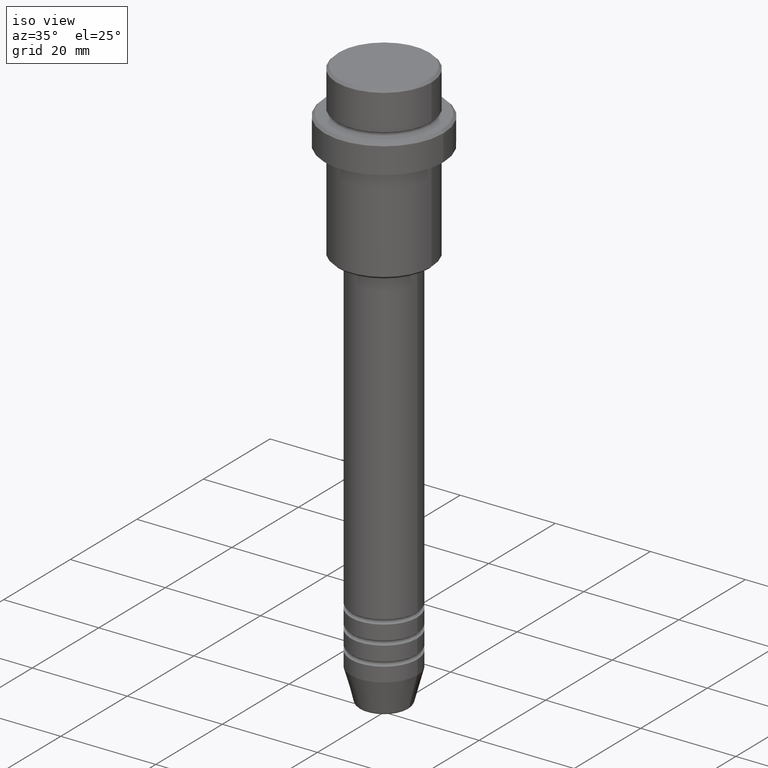
[diagram: clean part render]
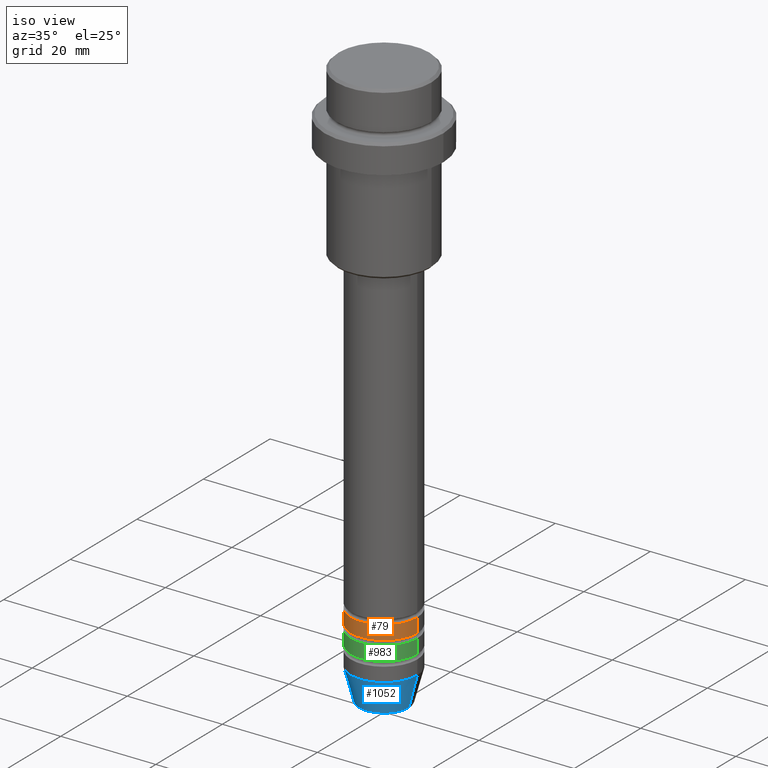
[diagram: same view with three faces highlighted in distinct colors, each labeled with its STEP entity id]
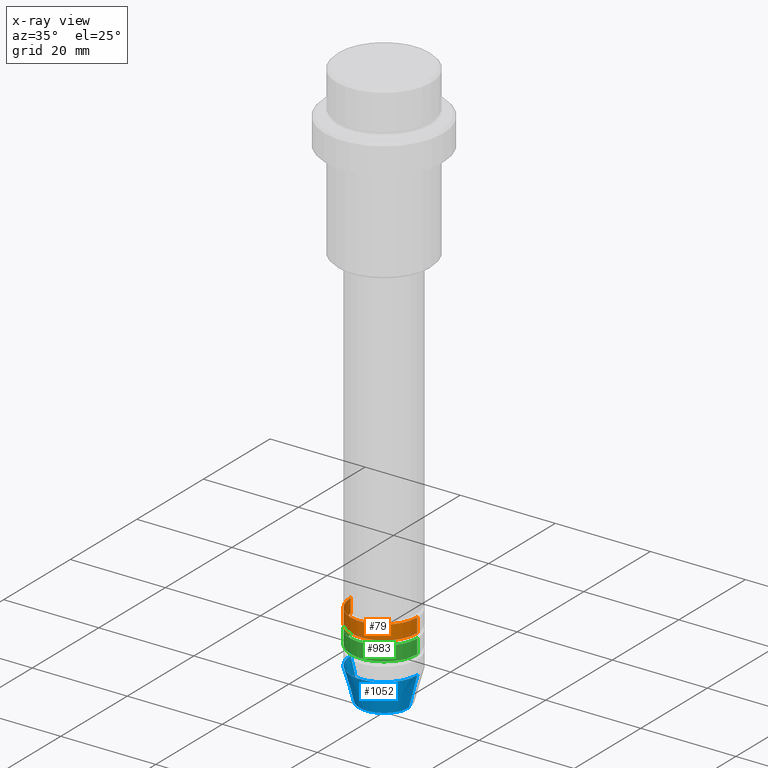
[diagram: x-ray of the same camera — body ghosted, the three highlighted faces saturated]
A machine part, iso view with three faces highlighted in distinct colors.
The next image is the same camera in x-ray (body ghosted, the three faces saturated) — at least one of them is partly hidden behind the body in this view.
Their STEP definitions:

[orange] entity #79 — the highlighted cylindrical surface (partial cylindrical patch) has radius 7 mm, axis along (-0, -0, 1).
#3 = ORIENTED_EDGE ( 'NONE', *, *, #300, .F. ) ;
#5 = DIRECTION ( 'NONE',  ( -0.000000000000000000, -0.000000000000000000, 1.000000000000000000 ) ) ;
#52 = DIRECTION ( 'NONE',  ( -0.000000000000000000, -0.000000000000000000, 1.000000000000000000 ) ) ;
#68 = CYLINDRICAL_SURFACE ( 'NONE', #237, 7.000000000000000000 ) ;
#79 = ADVANCED_FACE ( 'NONE', ( #414 ), #68, .T. ) ;
#180 = VERTEX_POINT ( 'NONE', #349 ) ;
#184 = DIRECTION ( 'NONE',  ( -0.000000000000000000, -0.000000000000000000, 1.000000000000000000 ) ) ;
#196 = EDGE_CURVE ( 'NONE', #180, #841, #1048, .T. ) ;
#200 = DIRECTION ( 'NONE',  ( 1.000000000000000000, 0.000000000000000000, 0.000000000000000000 ) ) ;
#237 = AXIS2_PLACEMENT_3D ( 'NONE', #1157, #184, #200 ) ;
#251 = LINE ( 'NONE', #685, #808 ) ;
#300 = EDGE_CURVE ( 'NONE', #180, #1338, #370, .T. ) ;
#314 = CARTESIAN_POINT ( 'NONE',  ( 7.000000000000000000, 0.000000000000000000, -105.9999999999999005 ) ) ;
#318 = VERTEX_POINT ( 'NONE', #481 ) ;
#337 = EDGE_CURVE ( 'NONE', #841, #318, #251, .T. ) ;
#349 = CARTESIAN_POINT ( 'NONE',  ( -7.000000000000000000, 8.572527594031473190E-16, -105.9999999999999005 ) ) ;
#370 = LINE ( 'NONE', #1241, #484 ) ;
#414 = FACE_OUTER_BOUND ( 'NONE', #918, .T. ) ;
#454 = CARTESIAN_POINT ( 'NONE',  ( 0.000000000000000000, 0.000000000000000000, -105.9999999999999005 ) ) ;
#481 = CARTESIAN_POINT ( 'NONE',  ( 7.000000000000000000, 0.000000000000000000, -102.9999999999999005 ) ) ;
#484 = VECTOR ( 'NONE', #52, 1000.000000000000000 ) ;
#596 = DIRECTION ( 'NONE',  ( -0.000000000000000000, -0.000000000000000000, 1.000000000000000000 ) ) ;
#626 = AXIS2_PLACEMENT_3D ( 'NONE', #1412, #5, #953 ) ;
#648 = CARTESIAN_POINT ( 'NONE',  ( -7.000000000000000000, 8.572527594031473190E-16, -102.9999999999999005 ) ) ;
#685 = CARTESIAN_POINT ( 'NONE',  ( 7.000000000000000000, 0.000000000000000000, 0.000000000000000000 ) ) ;
#808 = VECTOR ( 'NONE', #596, 1000.000000000000000 ) ;
#841 = VERTEX_POINT ( 'NONE', #314 ) ;
#884 = DIRECTION ( 'NONE',  ( -0.000000000000000000, -0.000000000000000000, 1.000000000000000000 ) ) ;
#918 = EDGE_LOOP ( 'NONE', ( #3, #976, #1309, #1098 ) ) ;
#953 = DIRECTION ( 'NONE',  ( 1.000000000000000000, 0.000000000000000000, 0.000000000000000000 ) ) ;
#976 = ORIENTED_EDGE ( 'NONE', *, *, #196, .T. ) ;
#1048 = CIRCLE ( 'NONE', #1236, 7.000000000000000000 ) ;
#1098 = ORIENTED_EDGE ( 'NONE', *, *, #1355, .F. ) ;
#1157 = CARTESIAN_POINT ( 'NONE',  ( 0.000000000000000000, 0.000000000000000000, 0.000000000000000000 ) ) ;
#1199 = DIRECTION ( 'NONE',  ( 1.000000000000000000, 0.000000000000000000, 0.000000000000000000 ) ) ;
#1236 = AXIS2_PLACEMENT_3D ( 'NONE', #454, #884, #1199 ) ;
#1241 = CARTESIAN_POINT ( 'NONE',  ( -7.000000000000000000, 8.572527594031473190E-16, 0.000000000000000000 ) ) ;
#1245 = CIRCLE ( 'NONE', #626, 7.000000000000000000 ) ;
#1309 = ORIENTED_EDGE ( 'NONE', *, *, #337, .T. ) ;
#1338 = VERTEX_POINT ( 'NONE', #648 ) ;
#1355 = EDGE_CURVE ( 'NONE', #1338, #318, #1245, .T. ) ;
#1412 = CARTESIAN_POINT ( 'NONE',  ( 0.000000000000000000, 0.000000000000000000, -102.9999999999999005 ) ) ;

[blue] entity #1052 — the highlighted conical surface has half-angle 15 deg.
#18 = EDGE_CURVE ( 'NONE', #781, #588, #1189, .T. ) ;
#39 = CARTESIAN_POINT ( 'NONE',  ( 5.223655072137196598, 0.000000000000000000, -120.6294095225512422 ) ) ;
#42 = DIRECTION ( 'NONE',  ( -0.000000000000000000, -0.000000000000000000, 1.000000000000000000 ) ) ;
#76 = DIRECTION ( 'NONE',  ( 1.000000000000000000, 0.000000000000000000, 0.000000000000000000 ) ) ;
#90 = DIRECTION ( 'NONE',  ( -0.000000000000000000, -0.000000000000000000, 1.000000000000000000 ) ) ;
#92 = CARTESIAN_POINT ( 'NONE',  ( -7.000000000000000000, 8.572527594031473190E-16, -114.0000000000000000 ) ) ;
#155 = CARTESIAN_POINT ( 'NONE',  ( 0.000000000000000000, 0.000000000000000000, -114.0000000000000000 ) ) ;
#241 = VECTOR ( 'NONE', #1341, 1000.000000000000000 ) ;
#250 = CARTESIAN_POINT ( 'NONE',  ( 7.000000000000000000, 0.000000000000000000, -114.0000000000000000 ) ) ;
#293 = CARTESIAN_POINT ( 'NONE',  ( -7.000000000000000000, 8.572527594031473190E-16, -114.0000000000000000 ) ) ;
#299 = CARTESIAN_POINT ( 'NONE',  ( 0.000000000000000000, 0.000000000000000000, -120.6294095225512422 ) ) ;
#363 = EDGE_CURVE ( 'NONE', #494, #1111, #826, .T. ) ;
#376 = CONICAL_SURFACE ( 'NONE', #897, 7.000000000000000000, 0.2617993877991500740 ) ;
#428 = ORIENTED_EDGE ( 'NONE', *, *, #363, .F. ) ;
#443 = AXIS2_PLACEMENT_3D ( 'NONE', #299, #90, #76 ) ;
#471 = DIRECTION ( 'NONE',  ( -0.000000000000000000, -0.000000000000000000, 1.000000000000000000 ) ) ;
#480 = CARTESIAN_POINT ( 'NONE',  ( 7.000000000000000000, 0.000000000000000000, -114.0000000000000000 ) ) ;
#488 = CARTESIAN_POINT ( 'NONE',  ( 0.000000000000000000, 0.000000000000000000, -114.0000000000000000 ) ) ;
#491 = LINE ( 'NONE', #293, #531 ) ;
#494 = VERTEX_POINT ( 'NONE', #92 ) ;
#498 = ORIENTED_EDGE ( 'NONE', *, *, #18, .T. ) ;
#531 = VECTOR ( 'NONE', #1156, 1000.000000000000000 ) ;
#588 = VERTEX_POINT ( 'NONE', #39 ) ;
#688 = LINE ( 'NONE', #480, #241 ) ;
#709 = EDGE_LOOP ( 'NONE', ( #1397, #498, #729, #428 ) ) ;
#729 = ORIENTED_EDGE ( 'NONE', *, *, #1021, .T. ) ;
#752 = EDGE_CURVE ( 'NONE', #781, #494, #491, .T. ) ;
#781 = VERTEX_POINT ( 'NONE', #1371 ) ;
#782 = AXIS2_PLACEMENT_3D ( 'NONE', #155, #471, #804 ) ;
#798 = FACE_OUTER_BOUND ( 'NONE', #709, .T. ) ;
#804 = DIRECTION ( 'NONE',  ( 1.000000000000000000, 0.000000000000000000, 0.000000000000000000 ) ) ;
#826 = CIRCLE ( 'NONE', #782, 7.000000000000000000 ) ;
#897 = AXIS2_PLACEMENT_3D ( 'NONE', #488, #42, #1333 ) ;
#1021 = EDGE_CURVE ( 'NONE', #588, #1111, #688, .T. ) ;
#1052 = ADVANCED_FACE ( 'NONE', ( #798 ), #376, .T. ) ;
#1111 = VERTEX_POINT ( 'NONE', #250 ) ;
#1156 = DIRECTION ( 'NONE',  ( -0.2588190451025213501, 3.169619151431772337E-17, 0.9659258262890680902 ) ) ;
#1189 = CIRCLE ( 'NONE', #443, 5.223655072137196598 ) ;
#1333 = DIRECTION ( 'NONE',  ( 1.000000000000000000, 0.000000000000000000, 0.000000000000000000 ) ) ;
#1341 = DIRECTION ( 'NONE',  ( 0.2588190451025213501, 0.000000000000000000, 0.9659258262890680902 ) ) ;
#1371 = CARTESIAN_POINT ( 'NONE',  ( -5.223655072137196598, 7.484830028987063133E-16, -120.6294095225512422 ) ) ;
#1397 = ORIENTED_EDGE ( 'NONE', *, *, #752, .F. ) ;

[green] entity #983 — the highlighted cylindrical surface (partial cylindrical patch) has radius 7 mm, axis along (-0, -0, 1).
#58 = CARTESIAN_POINT ( 'NONE',  ( 7.000000000000000000, 0.000000000000000000, -109.9999999999999005 ) ) ;
#89 = CARTESIAN_POINT ( 'NONE',  ( -7.000000000000000000, 8.572527594031473190E-16, -106.9999999999999005 ) ) ;
#121 = CARTESIAN_POINT ( 'NONE',  ( 0.000000000000000000, 0.000000000000000000, -109.9999999999999005 ) ) ;
#154 = LINE ( 'NONE', #813, #672 ) ;
#336 = FACE_OUTER_BOUND ( 'NONE', #724, .T. ) ;
#341 = DIRECTION ( 'NONE',  ( -0.000000000000000000, -0.000000000000000000, 1.000000000000000000 ) ) ;
#361 = VERTEX_POINT ( 'NONE', #490 ) ;
#378 = VECTOR ( 'NONE', #942, 1000.000000000000000 ) ;
#421 = CARTESIAN_POINT ( 'NONE',  ( -7.000000000000000000, 8.572527594031473190E-16, -109.9999999999999005 ) ) ;
#444 = CYLINDRICAL_SURFACE ( 'NONE', #787, 7.000000000000000000 ) ;
#457 = ORIENTED_EDGE ( 'NONE', *, *, #1137, .F. ) ;
#458 = DIRECTION ( 'NONE',  ( -0.000000000000000000, -0.000000000000000000, 1.000000000000000000 ) ) ;
#467 = CIRCLE ( 'NONE', #1032, 7.000000000000000000 ) ;
#490 = CARTESIAN_POINT ( 'NONE',  ( 7.000000000000000000, 0.000000000000000000, -106.9999999999999005 ) ) ;
#522 = LINE ( 'NONE', #1063, #378 ) ;
#525 = EDGE_CURVE ( 'NONE', #849, #361, #916, .T. ) ;
#651 = DIRECTION ( 'NONE',  ( 1.000000000000000000, 0.000000000000000000, 0.000000000000000000 ) ) ;
#672 = VECTOR ( 'NONE', #1247, 1000.000000000000000 ) ;
#718 = ORIENTED_EDGE ( 'NONE', *, *, #525, .F. ) ;
#724 = EDGE_LOOP ( 'NONE', ( #457, #991, #1135, #718 ) ) ;
#787 = AXIS2_PLACEMENT_3D ( 'NONE', #875, #341, #986 ) ;
#812 = VERTEX_POINT ( 'NONE', #421 ) ;
#813 = CARTESIAN_POINT ( 'NONE',  ( -7.000000000000000000, 8.572527594031473190E-16, 0.000000000000000000 ) ) ;
#849 = VERTEX_POINT ( 'NONE', #89 ) ;
#856 = CARTESIAN_POINT ( 'NONE',  ( 0.000000000000000000, 0.000000000000000000, -106.9999999999999005 ) ) ;
#875 = CARTESIAN_POINT ( 'NONE',  ( 0.000000000000000000, 0.000000000000000000, 0.000000000000000000 ) ) ;
#891 = EDGE_CURVE ( 'NONE', #812, #1173, #467, .T. ) ;
#916 = CIRCLE ( 'NONE', #1028, 7.000000000000000000 ) ;
#942 = DIRECTION ( 'NONE',  ( -0.000000000000000000, -0.000000000000000000, 1.000000000000000000 ) ) ;
#983 = ADVANCED_FACE ( 'NONE', ( #336 ), #444, .T. ) ;
#986 = DIRECTION ( 'NONE',  ( 1.000000000000000000, 0.000000000000000000, 0.000000000000000000 ) ) ;
#991 = ORIENTED_EDGE ( 'NONE', *, *, #891, .T. ) ;
#1028 = AXIS2_PLACEMENT_3D ( 'NONE', #856, #1284, #1201 ) ;
#1032 = AXIS2_PLACEMENT_3D ( 'NONE', #121, #458, #651 ) ;
#1063 = CARTESIAN_POINT ( 'NONE',  ( 7.000000000000000000, 0.000000000000000000, 0.000000000000000000 ) ) ;
#1135 = ORIENTED_EDGE ( 'NONE', *, *, #1233, .T. ) ;
#1137 = EDGE_CURVE ( 'NONE', #812, #849, #154, .T. ) ;
#1173 = VERTEX_POINT ( 'NONE', #58 ) ;
#1201 = DIRECTION ( 'NONE',  ( 1.000000000000000000, 0.000000000000000000, 0.000000000000000000 ) ) ;
#1233 = EDGE_CURVE ( 'NONE', #1173, #361, #522, .T. ) ;
#1247 = DIRECTION ( 'NONE',  ( -0.000000000000000000, -0.000000000000000000, 1.000000000000000000 ) ) ;
#1284 = DIRECTION ( 'NONE',  ( -0.000000000000000000, -0.000000000000000000, 1.000000000000000000 ) ) ;